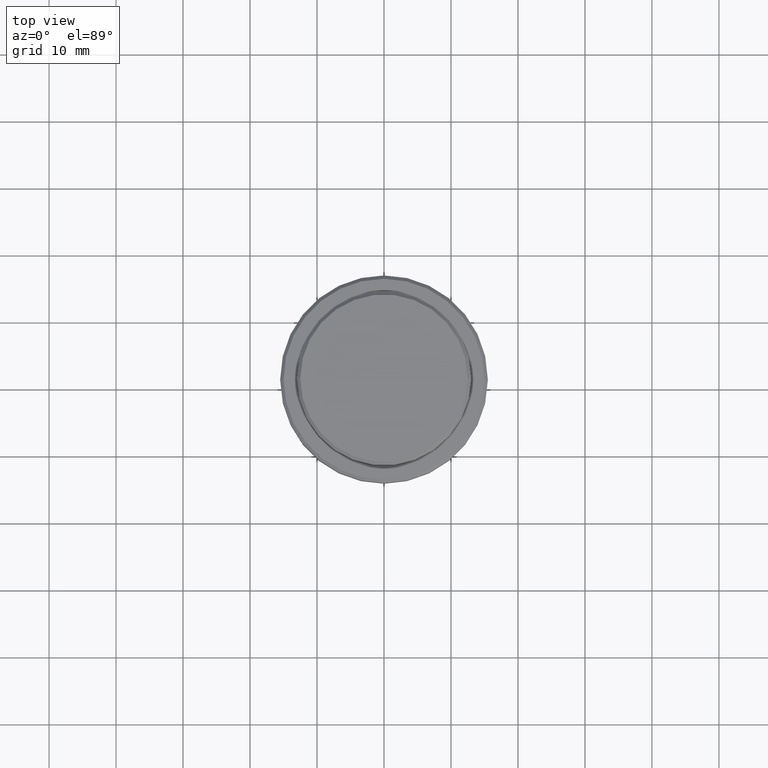
[diagram: clean part render]
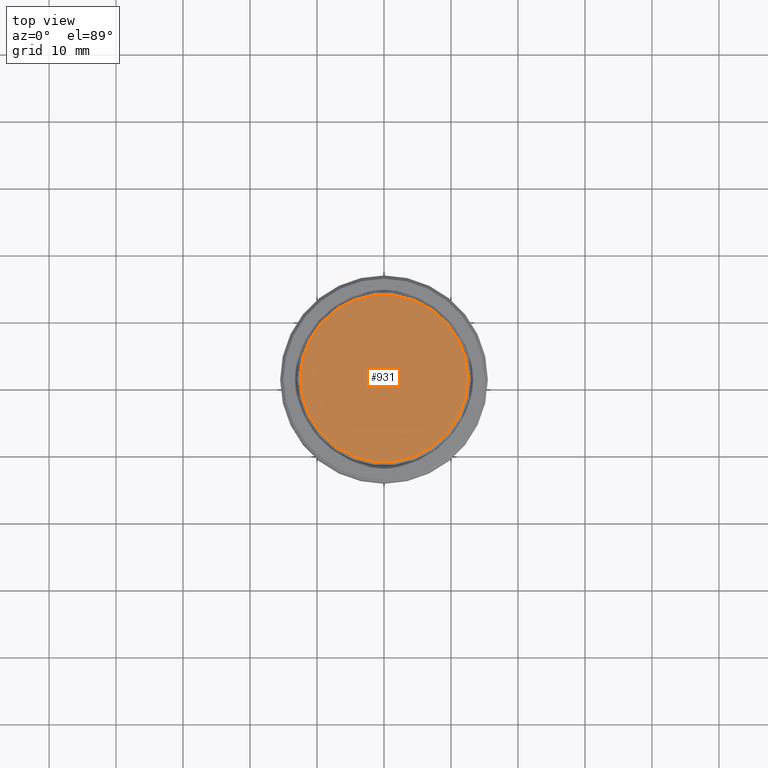
[diagram: same view with one face highlighted and labeled with its STEP entity id]
A machine part, top view. The second image highlights one B-rep face of the part: STEP entity #931.
In plain terms, the highlighted planar face has unit normal (0, -0, 1).
Its self-contained STEP definition (entity closure, byte-faithful):
#91 = VERTEX_POINT ( 'NONE', #335 ) ;
#114 = AXIS2_PLACEMENT_3D ( 'NONE', #810, #247, #694 ) ;
#118 = AXIS2_PLACEMENT_3D ( 'NONE', #353, #365, #699 ) ;
#130 = DIRECTION ( 'NONE',  ( -0.000000000000000000, -0.000000000000000000, 1.000000000000000000 ) ) ;
#134 = EDGE_CURVE ( 'NONE', #1043, #91, #1097, .T. ) ;
#164 = ORIENTED_EDGE ( 'NONE', *, *, #134, .T. ) ;
#247 = DIRECTION ( 'NONE',  ( 0.000000000000000000, -0.000000000000000000, 1.000000000000000000 ) ) ;
#335 = CARTESIAN_POINT ( 'NONE',  ( 12.49999999999998579, 1.561424668912874125E-15, 0.000000000000000000 ) ) ;
#353 = CARTESIAN_POINT ( 'NONE',  ( 0.000000000000000000, 0.000000000000000000, 0.000000000000000000 ) ) ;
#365 = DIRECTION ( 'NONE',  ( -0.000000000000000000, -0.000000000000000000, 1.000000000000000000 ) ) ;
#592 = PLANE ( 'NONE',  #114 ) ;
#670 = DIRECTION ( 'NONE',  ( 1.000000000000000000, 0.000000000000000000, 0.000000000000000000 ) ) ;
#694 = DIRECTION ( 'NONE',  ( 1.000000000000000000, 0.000000000000000000, 0.000000000000000000 ) ) ;
#699 = DIRECTION ( 'NONE',  ( 1.000000000000000000, 0.000000000000000000, 0.000000000000000000 ) ) ;
#810 = CARTESIAN_POINT ( 'NONE',  ( 0.000000000000000000, 0.000000000000000000, 0.000000000000000000 ) ) ;
#915 = EDGE_CURVE ( 'NONE', #91, #1043, #1329, .T. ) ;
#931 = ADVANCED_FACE ( 'NONE', ( #1138 ), #592, .T. ) ;
#1002 = ORIENTED_EDGE ( 'NONE', *, *, #915, .T. ) ;
#1043 = VERTEX_POINT ( 'NONE', #1177 ) ;
#1097 = CIRCLE ( 'NONE', #1126, 12.49999999999998579 ) ;
#1126 = AXIS2_PLACEMENT_3D ( 'NONE', #1318, #130, #670 ) ;
#1138 = FACE_OUTER_BOUND ( 'NONE', #1230, .T. ) ;
#1177 = CARTESIAN_POINT ( 'NONE',  ( -12.49999999999998579, 0.000000000000000000, 0.000000000000000000 ) ) ;
#1230 = EDGE_LOOP ( 'NONE', ( #164, #1002 ) ) ;
#1318 = CARTESIAN_POINT ( 'NONE',  ( 0.000000000000000000, 0.000000000000000000, 0.000000000000000000 ) ) ;
#1329 = CIRCLE ( 'NONE', #118, 12.49999999999998579 ) ;